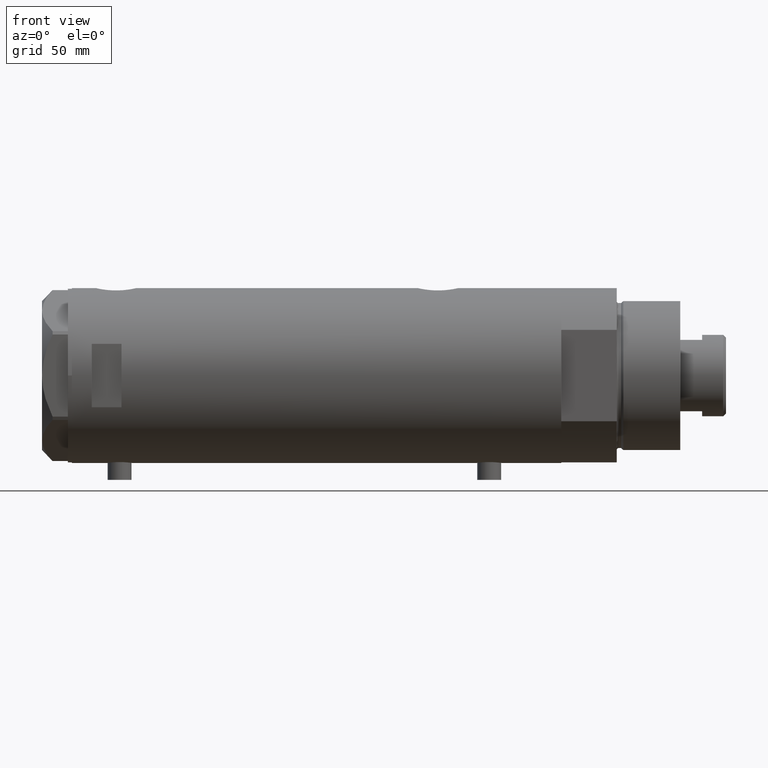
[diagram: clean part render]
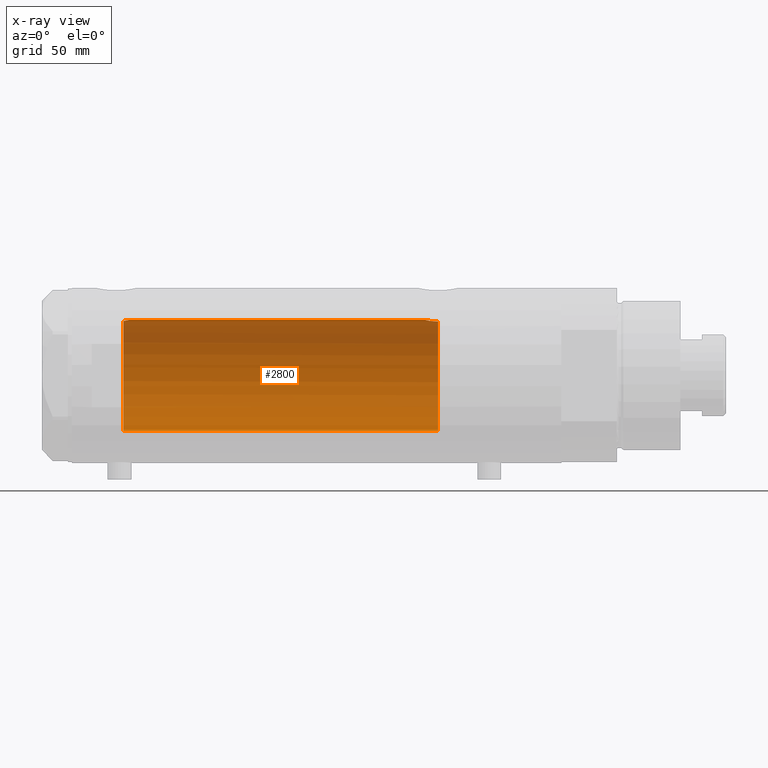
[diagram: x-ray — body ghosted, one internal face saturated and labeled with its STEP entity id]
A machine part, front view, then the same camera in x-ray: the body is ghosted and one INTERNAL B-rep face — a face not visible from any outside direction — is saturated and labeled: STEP entity #2800.
In plain terms, the highlighted cylindrical surface (partial cylindrical patch) has radius 28 mm, axis along (1, 0, -0).
Its self-contained STEP definition (entity closure, byte-faithful):
#33 = CARTESIAN_POINT ( 'NONE',  ( 27.93969014165221765, 1.855286977351521704, 94.58124112405663197 ) ) ;
#47 = CARTESIAN_POINT ( 'NONE',  ( 27.57921322802619812, 4.838471943606454495, -56.63541026849051718 ) ) ;
#332 = AXIS2_PLACEMENT_3D ( 'NONE', #2572, #2961, #1168 ) ;
#336 = CARTESIAN_POINT ( 'NONE',  ( 28.00000000000000000, 0.000000000000000000, 94.32000000000000739 ) ) ;
#396 = CARTESIAN_POINT ( 'NONE',  ( 27.98989376185446076, 0.8673308354119261265, -54.56259295538818321 ) ) ;
#417 = EDGE_LOOP ( 'NONE', ( #538, #1686, #1115, #2993, #3325, #4223 ) ) ;
#442 = CARTESIAN_POINT ( 'NONE',  ( 27.47751794615729537, 5.385218554237039434, -57.31285718566400789 ) ) ;
#538 = ORIENTED_EDGE ( 'NONE', *, *, #1786, .F. ) ;
#557 = EDGE_CURVE ( 'NONE', #722, #1034, #939, .T. ) ;
#674 = CARTESIAN_POINT ( 'NONE',  ( 28.00000000000000355, 0.5407212781083803321, 94.32000000000002160 ) ) ;
#686 = CARTESIAN_POINT ( 'NONE',  ( 27.21525044627863466, 6.582564457995937701, -60.98128103916471332 ) ) ;
#718 = CARTESIAN_POINT ( 'NONE',  ( 27.21605408577812568, 6.579240077698938371, -61.20000000000000284 ) ) ;
#722 = VERTEX_POINT ( 'NONE', #3099 ) ;
#781 = CARTESIAN_POINT ( 'NONE',  ( 27.52730847012277948, 5.126288527110444804, 96.76623399461909969 ) ) ;
#791 = CARTESIAN_POINT ( 'NONE',  ( 27.80267334785860101, 3.323944738624905693, -55.41709962017579727 ) ) ;
#917 = DIRECTION ( 'NONE',  ( 0.000000000000000000, 0.000000000000000000, 1.000000000000000000 ) ) ;
#938 = CARTESIAN_POINT ( 'NONE',  ( 28.00000000000000000, 8.058211040235281960E-16, -54.52000000000001023 ) ) ;
#939 = B_SPLINE_CURVE_WITH_KNOTS ( 'NONE', 3,
 ( #1739, #1498, #781, #4278, #3148, #3492, #2125, #2485, #3541, #3246, #33, #2176, #674, #336 ),
 .UNSPECIFIED., .F., .F.,
 ( 4, 2, 2, 2, 2, 2, 4 ),
 ( 0.03488855882532450325, 0.03568791961119571754, 0.03648728039706693183, 0.03808600196880933264, 0.03888536275468051917, 0.03968472354055171264, 0.04128344511229409958 ),
 .UNSPECIFIED. ) ;
#1034 = VERTEX_POINT ( 'NONE', #3176 ) ;
#1045 = CARTESIAN_POINT ( 'NONE',  ( 27.50226589723265391, 5.257822516958269965, -57.13779315141980675 ) ) ;
#1095 = CARTESIAN_POINT ( 'NONE',  ( 27.92057377942992602, 2.145335874642055440, -54.86449057456584910 ) ) ;
#1115 = ORIENTED_EDGE ( 'NONE', *, *, #2856, .T. ) ;
#1168 = DIRECTION ( 'NONE',  ( -1.000000000000000000, 0.000000000000000000, 0.000000000000000000 ) ) ;
#1274 = LINE ( 'NONE', #2679, #3867 ) ;
#1442 = VECTOR ( 'NONE', #3604, 1000.000000000000000 ) ;
#1447 = DIRECTION ( 'NONE',  ( 0.000000000000000000, 0.000000000000000000, -1.000000000000000000 ) ) ;
#1466 = CARTESIAN_POINT ( 'NONE',  ( 27.26132124301010506, 6.389601967157234164, -59.46983701249833132 ) ) ;
#1485 = CARTESIAN_POINT ( 'NONE',  ( 27.22604017942136778, 6.537820648187905981, -60.32472952793342102 ) ) ;
#1498 = CARTESIAN_POINT ( 'NONE',  ( 27.49602064413222635, 5.290780227724656726, 96.97882924682042471 ) ) ;
#1511 = CARTESIAN_POINT ( 'NONE',  ( 0.000000000000000000, 0.000000000000000000, 97.20000000000000284 ) ) ;
#1586 = CIRCLE ( 'NONE', #2834, 28.00000000000000000 ) ;
#1686 = ORIENTED_EDGE ( 'NONE', *, *, #557, .F. ) ;
#1739 = CARTESIAN_POINT ( 'NONE',  ( 27.46622653369042411, 5.441176343402230664, 97.20000000000000284 ) ) ;
#1786 = EDGE_CURVE ( 'NONE', #1034, #2369, #3318, .T. ) ;
#1843 = CARTESIAN_POINT ( 'NONE',  ( 27.40633791352276916, 5.740289853568789624, -57.85469713442368800 ) ) ;
#2029 = B_SPLINE_CURVE_WITH_KNOTS ( 'NONE', 3,
 ( #4469, #4127, #396, #4196, #1095, #4216, #3209, #791, #2813, #2443, #2468, #47, #3528, #1045, #442, #1843, #4247, #2495, #1466, #3864, #1485, #3891, #686, #718 ),
 .UNSPECIFIED., .F., .F.,
 ( 4, 2, 2, 2, 2, 2, 2, 2, 2, 2, 2, 4 ),
 ( 0.02064447638625017609, 0.02194711032043802218, 0.02324974425462586480, 0.02390106122171978612, 0.02455237818881370743, 0.02585501212300156393, 0.02650632909009548177, 0.02715764605718940308, 0.02846027999137725611, 0.02976291392556511262, 0.03041423089265904087, 0.03106554785975296912 ),
 .UNSPECIFIED. ) ;
#2062 = EDGE_CURVE ( 'NONE', #4287, #2262, #1586, .T. ) ;
#2065 = DIRECTION ( 'NONE',  ( -1.000000000000000000, 0.000000000000000000, 0.000000000000000000 ) ) ;
#2125 = CARTESIAN_POINT ( 'NONE',  ( 27.77752716845531822, 3.554080867558359280, 95.33702809021860958 ) ) ;
#2176 = CARTESIAN_POINT ( 'NONE',  ( 27.98435453724556510, 1.072101232728050579, 94.38566097371688102 ) ) ;
#2198 = CARTESIAN_POINT ( 'NONE',  ( 28.00000000000000000, 3.429011037612589276E-15, 123.2000000000000028 ) ) ;
#2210 = CARTESIAN_POINT ( 'NONE',  ( 27.21605408577812568, 6.579240077698938371, -61.20000000000000284 ) ) ;
#2262 = VERTEX_POINT ( 'NONE', #2210 ) ;
#2369 = VERTEX_POINT ( 'NONE', #938 ) ;
#2443 = CARTESIAN_POINT ( 'NONE',  ( 27.70785054350542964, 4.050475470458768434, -55.89631279652926565 ) ) ;
#2468 = CARTESIAN_POINT ( 'NONE',  ( 27.65669575048418594, 4.382057994727783345, -56.17233761202034259 ) ) ;
#2485 = CARTESIAN_POINT ( 'NONE',  ( 27.85549123290575579, 2.850830541327404877, 94.96370468682906107 ) ) ;
#2495 = CARTESIAN_POINT ( 'NONE',  ( 27.28989504668422228, 6.268149480003692098, -59.05093353430706316 ) ) ;
#2520 = FACE_OUTER_BOUND ( 'NONE', #417, .T. ) ;
#2572 = CARTESIAN_POINT ( 'NONE',  ( 0.000000000000000000, 0.000000000000000000, 123.2000000000000028 ) ) ;
#2679 = CARTESIAN_POINT ( 'NONE',  ( -28.00000000000000000, 0.000000000000000000, 123.2000000000000028 ) ) ;
#2700 = AXIS2_PLACEMENT_3D ( 'NONE', #1511, #917, #4060 ) ;
#2798 = CARTESIAN_POINT ( 'NONE',  ( -28.00000000000000000, 0.000000000000000000, -61.20000000000000284 ) ) ;
#2800 = ADVANCED_FACE ( 'NONE', ( #2520 ), #3578, .F. ) ;
#2813 = CARTESIAN_POINT ( 'NONE',  ( 27.77951318121830582, 3.511620812961470772, -55.53115835401438005 ) ) ;
#2834 = AXIS2_PLACEMENT_3D ( 'NONE', #2850, #1447, #2065 ) ;
#2850 = CARTESIAN_POINT ( 'NONE',  ( 0.000000000000000000, 0.000000000000000000, -61.20000000000000284 ) ) ;
#2856 = EDGE_CURVE ( 'NONE', #722, #3251, #4159, .T. ) ;
#2961 = DIRECTION ( 'NONE',  ( -0.000000000000000000, -0.000000000000000000, -1.000000000000000000 ) ) ;
#2993 = ORIENTED_EDGE ( 'NONE', *, *, #3361, .T. ) ;
#3068 = DIRECTION ( 'NONE',  ( -0.000000000000000000, -0.000000000000000000, -1.000000000000000000 ) ) ;
#3099 = CARTESIAN_POINT ( 'NONE',  ( 27.46622653369042411, 5.441176343402230664, 97.20000000000000284 ) ) ;
#3148 = CARTESIAN_POINT ( 'NONE',  ( 27.62184089756353700, 4.590621453796800644, 96.17847296394720047 ) ) ;
#3176 = CARTESIAN_POINT ( 'NONE',  ( 28.00000000000000000, 0.000000000000000000, 94.32000000000000739 ) ) ;
#3209 = CARTESIAN_POINT ( 'NONE',  ( 27.84585502960274539, 2.940342086136627842, -55.20946914370767189 ) ) ;
#3246 = CARTESIAN_POINT ( 'NONE',  ( 27.92131942247208798, 2.112374604004425116, 94.66259974202708349 ) ) ;
#3251 = VERTEX_POINT ( 'NONE', #4328 ) ;
#3318 = LINE ( 'NONE', #2198, #1442 ) ;
#3325 = ORIENTED_EDGE ( 'NONE', *, *, #2062, .T. ) ;
#3361 = EDGE_CURVE ( 'NONE', #3251, #4287, #1274, .T. ) ;
#3492 = CARTESIAN_POINT ( 'NONE',  ( 27.71586615897684780, 3.998795151939225523, 95.64767395625746360 ) ) ;
#3528 = CARTESIAN_POINT ( 'NONE',  ( 27.55311958554908713, 4.984468698502469763, -56.79897075987406652 ) ) ;
#3541 = CARTESIAN_POINT ( 'NONE',  ( 27.87926027245440608, 2.609415915507860895, 94.85365920364242243 ) ) ;
#3578 = CYLINDRICAL_SURFACE ( 'NONE', #332, 28.00000000000000000 ) ;
#3604 = DIRECTION ( 'NONE',  ( -0.000000000000000000, -0.000000000000000000, -1.000000000000000000 ) ) ;
#3767 = EDGE_CURVE ( 'NONE', #2369, #2262, #2029, .T. ) ;
#3864 = CARTESIAN_POINT ( 'NONE',  ( 27.23306259439848986, 6.508606919525671941, -60.10931986330979981 ) ) ;
#3867 = VECTOR ( 'NONE', #3068, 1000.000000000000000 ) ;
#3891 = CARTESIAN_POINT ( 'NONE',  ( 27.21712162367727927, 6.574850051620745539, -60.76016190408789441 ) ) ;
#4060 = DIRECTION ( 'NONE',  ( 1.000000000000000000, 0.000000000000000000, 0.000000000000000000 ) ) ;
#4127 = CARTESIAN_POINT ( 'NONE',  ( 28.00000000000000711, 0.4344375524774768960, -54.52000000000001734 ) ) ;
#4159 = CIRCLE ( 'NONE', #2700, 28.00000000000000000 ) ;
#4196 = CARTESIAN_POINT ( 'NONE',  ( 27.94984428957576128, 1.729919005741099802, -54.73624844305086157 ) ) ;
#4216 = CARTESIAN_POINT ( 'NONE',  ( 27.86588799758911605, 2.744542339393446717, -55.11578757899567904 ) ) ;
#4223 = ORIENTED_EDGE ( 'NONE', *, *, #3767, .F. ) ;
#4247 = CARTESIAN_POINT ( 'NONE',  ( 27.36295003163000672, 5.941130795499224959, -58.23794896005178856 ) ) ;
#4278 = CARTESIAN_POINT ( 'NONE',  ( 27.59012538417911031, 4.776664836238046163, 96.36675298569846859 ) ) ;
#4287 = VERTEX_POINT ( 'NONE', #2798 ) ;
#4328 = CARTESIAN_POINT ( 'NONE',  ( -28.00000000000000000, 0.000000000000000000, 97.20000000000000284 ) ) ;
#4469 = CARTESIAN_POINT ( 'NONE',  ( 28.00000000000000000, 8.058211040235281960E-16, -54.52000000000001023 ) ) ;